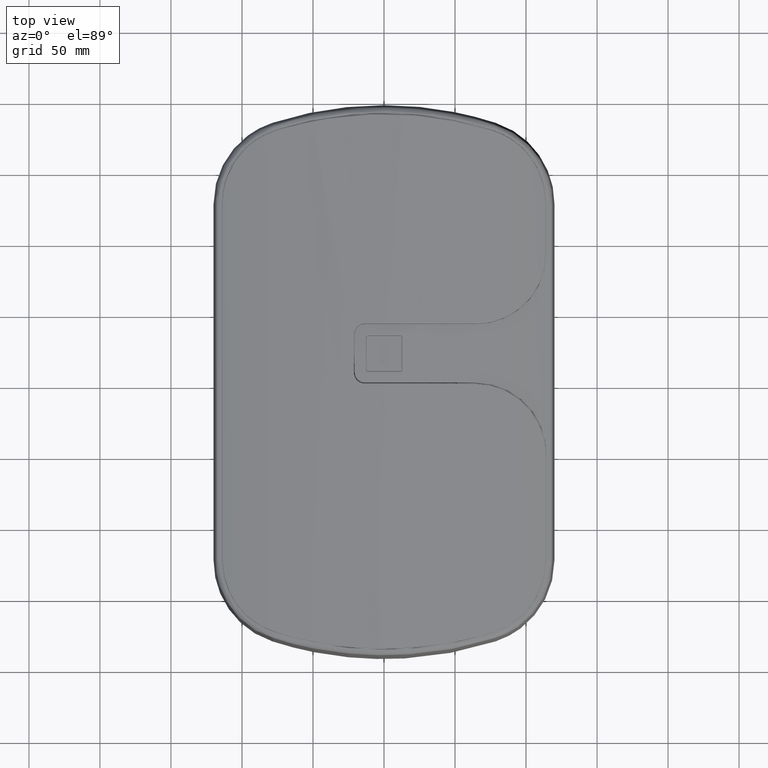
[diagram: clean part render]
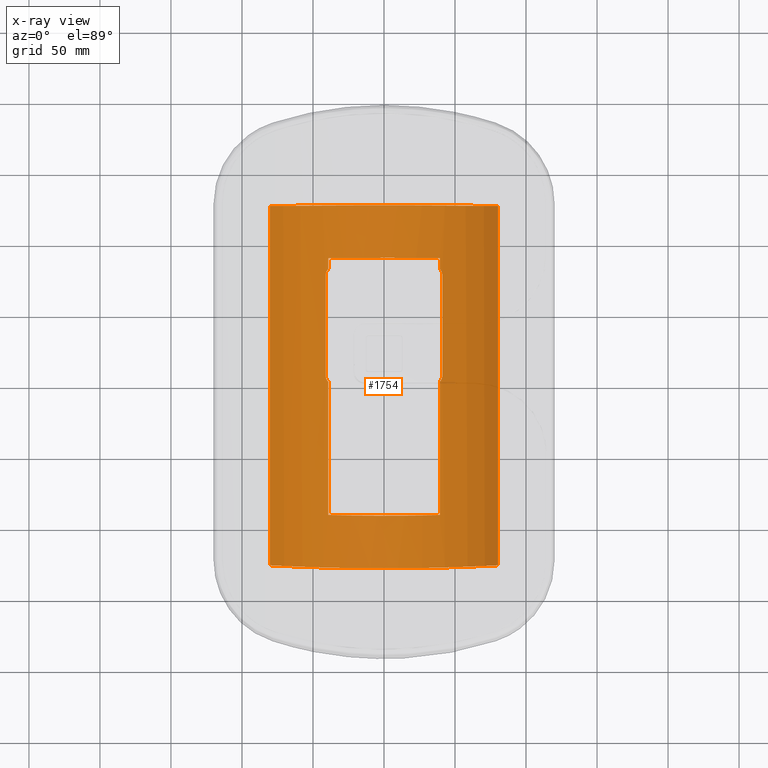
[diagram: x-ray — body ghosted, one internal face saturated and labeled with its STEP entity id]
A machine part, top view, then the same camera in x-ray: the body is ghosted and one INTERNAL B-rep face — a face not visible from any outside direction — is saturated and labeled: STEP entity #1754.
In plain terms, the highlighted cylindrical surface (partial cylindrical patch) has radius 90.1522 mm, axis along (0, 1, 0).
Its self-contained STEP definition (entity closure, byte-faithful):
#132 = CARTESIAN_POINT ( 'NONE',  ( 40.90557813736990767, 57.07402972177268907, 94.80803827280256257 ) ) ;
#234 = VERTEX_POINT ( 'NONE', #63176 ) ;
#364 = CARTESIAN_POINT ( 'NONE',  ( -30.78841849190333235, -39.62429012305283038, 90.41985972601159460 ) ) ;
#439 = CARTESIAN_POINT ( 'NONE',  ( 41.03697861963429716, 57.80484683071844643, 94.88149629760330583 ) ) ;
#676 = CARTESIAN_POINT ( 'NONE',  ( 41.03697861965481053, 58.50000000000055422, 94.88149629764072301 ) ) ;
#742 = CARTESIAN_POINT ( 'NONE',  ( -7.302154757409890173, 141.7136526531677703, 85.28892349771538761 ) ) ;
#1314 = CARTESIAN_POINT ( 'NONE',  ( 19.66662352687982818, -39.79456564662091722, 87.17080918623400976 ) ) ;
#1359 = CYLINDRICAL_SURFACE ( 'NONE', #49672, 90.15221630656441221 ) ;
#1424 = CARTESIAN_POINT ( 'NONE',  ( 39.26499577889830306, 54.41912190320896769, 93.99999999999677414 ) ) ;
#1754 = ADVANCED_FACE ( 'NONE', ( #51331, #21022 ), #1359, .F. ) ;
#1968 = CARTESIAN_POINT ( 'NONE',  ( 20.18774678234797548, -39.78835481277956632, 87.28931895570568145 ) ) ;
#2169 = CARTESIAN_POINT ( 'NONE',  ( -76.52978605664300460, 177.5188396419665651, 126.7775404535725414 ) ) ;
#2193 = EDGE_CURVE ( 'NONE', #46781, #11759, #62218, .T. ) ;
#2223 = EDGE_CURVE ( 'NONE', #37433, #234, #63266, .T. ) ;
#2601 = CARTESIAN_POINT ( 'NONE',  ( 18.93627237570326471, -39.80302747727972701, 87.00934783880489931 ) ) ;
#2793 = CARTESIAN_POINT ( 'NONE',  ( -40.83296532811448287, 56.95666379137531266, 94.77500764300280878 ) ) ;
#2958 = DIRECTION ( 'NONE',  ( 2.465190328815662439E-32, 1.000000000000000000, 4.287526199837192785E-16 ) ) ;
#3111 = CARTESIAN_POINT ( 'NONE',  ( -39.26499577891425474, 54.38909468053756768, 93.99999999999839417 ) ) ;
#3416 = CARTESIAN_POINT ( 'NONE',  ( 39.26499577891434711, -39.43666292177143617, 93.99999999999839417 ) ) ;
#3700 = VECTOR ( 'NONE', #8655, 1000.000000000000000 ) ;
#4060 = CARTESIAN_POINT ( 'NONE',  ( -40.59662378784479841, 56.29230851202581931, 94.65505941444013160 ) ) ;
#4064 = CARTESIAN_POINT ( 'NONE',  ( 53.95139515573681166, 178.0863308044475275, 102.8086101609835481 ) ) ;
#4329 = CARTESIAN_POINT ( 'NONE',  ( 30.49624810130703167, 141.4502654430991129, 90.31465085483495159 ) ) ;
#4880 = EDGE_CURVE ( 'NONE', #16903, #52347, #14126, .T. ) ;
#5889 = CARTESIAN_POINT ( 'NONE',  ( -1.560708319839698789E-14, -144.0897692216264829, 175.1522163065623943 ) ) ;
#5911 = CARTESIAN_POINT ( 'NONE',  ( -29.70804349153114998, 141.4648984631275539, 90.03543619951747701 ) ) ;
#5940 = LINE ( 'NONE', #45917, #30863 ) ;
#5951 = LINE ( 'NONE', #40729, #25349 ) ;
#6163 = CARTESIAN_POINT ( 'NONE',  ( -18.72948519085342411, -39.80611490787921269, 86.95043615352248878 ) ) ;
#6189 = EDGE_CURVE ( 'NONE', #11759, #23847, #26453, .T. ) ;
#6773 = CARTESIAN_POINT ( 'NONE',  ( -20.43001166666658719, -76.83627162475123384, 87.24732403663740854 ) ) ;
#6863 = CARTESIAN_POINT ( 'NONE',  ( 11.78333394771946629, 141.6883584543913628, 85.77156556197436998 ) ) ;
#7086 = CARTESIAN_POINT ( 'NONE',  ( -80.31623573083551548, -75.62785733024065848, 134.2043911748850462 ) ) ;
#7307 = CARTESIAN_POINT ( 'NONE',  ( -20.55913101279658406, 178.6553967417365243, 87.27942898633652646 ) ) ;
#7405 = CARTESIAN_POINT ( 'NONE',  ( -4.092363584587587866, -76.93244110880645792, 84.99854959376843055 ) ) ;
#7619 = CARTESIAN_POINT ( 'NONE',  ( -40.27744008708557999, 55.56833773635279528, 94.49437593108275735 ) ) ;
#7947 = CARTESIAN_POINT ( 'NONE',  ( 32.41810375016801515, 178.5182008680135084, 90.62161781680356398 ) ) ;
#8270 = CARTESIAN_POINT ( 'NONE',  ( 71.70443713174810796, 177.6429719785025441, 119.8920985516345468 ) ) ;
#8586 = CARTESIAN_POINT ( 'NONE',  ( 39.94627156527391776, 178.3872395347475504, 93.90960074008955871 ) ) ;
#8601 = ORIENTED_EDGE ( 'NONE', *, *, #25851, .F. ) ;
#8655 = DIRECTION ( 'NONE',  ( 3.345615446249826462E-32, 1.000000000000000000, 2.701493307515542275E-16 ) ) ;
#8885 = CARTESIAN_POINT ( 'NONE',  ( -40.88232499727023850, 57.14558125166216485, 94.80040790457469768 ) ) ;
#9166 = CARTESIAN_POINT ( 'NONE',  ( 31.46871119831700625, 141.4317052587238663, 90.66880026984709673 ) ) ;
#9597 = VERTEX_POINT ( 'NONE', #19346 ) ;
#10097 = EDGE_CURVE ( 'NONE', #234, #16903, #42277, .T. ) ;
#10672 = CARTESIAN_POINT ( 'NONE',  ( -30.49624810129206409, -39.62980388635244111, 90.31465085482757615 ) ) ;
#10995 = ORIENTED_EDGE ( 'NONE', *, *, #31451, .F. ) ;
#11299 = CARTESIAN_POINT ( 'NONE',  ( 7.302154756477118980, -39.89319109642043060, 85.28892349772094406 ) ) ;
#11366 = CARTESIAN_POINT ( 'NONE',  ( 13.26491814773293676, 141.6777502991255915, 85.97398122260435116 ) ) ;
#11499 = CARTESIAN_POINT ( 'NONE',  ( 4.092363584591142356, 178.7529026655325026, 84.99854959376854424 ) ) ;
#11563 = VERTEX_POINT ( 'NONE', #56293 ) ;
#11621 = CARTESIAN_POINT ( 'NONE',  ( 30.00860307232177604, -39.63890755541364541, 90.14094250111047302 ) ) ;
#11683 = CARTESIAN_POINT ( 'NONE',  ( -9.442657841708070876, 141.7028207289071986, 85.49560892512184296 ) ) ;
#11692 = EDGE_CURVE ( 'NONE', #52347, #46697, #5951, .T. ) ;
#11759 = VERTEX_POINT ( 'NONE', #53624 ) ;
#11904 = CARTESIAN_POINT ( 'NONE',  ( -63.30747214974628889, -76.03649449990155063, 110.8363374086144262 ) ) ;
#12124 = CARTESIAN_POINT ( 'NONE',  ( -63.41549348279308873, 177.8542120993895139, 110.9420437781815423 ) ) ;
#12453 = CARTESIAN_POINT ( 'NONE',  ( -60.36831774476978296, 177.9315257084275288, 108.0695028929325474 ) ) ;
#12545 = CARTESIAN_POINT ( 'NONE',  ( 39.96653512024431620, -76.56004581512064533, 94.23631551905641857 ) ) ;
#12731 = EDGE_CURVE ( 'NONE', #39972, #55456, #33773, .T. ) ;
#12757 = CARTESIAN_POINT ( 'NONE',  ( 8.193435622893604275, 178.7406797528215350, 85.27878004949354818 ) ) ;
#12793 = CARTESIAN_POINT ( 'NONE',  ( -39.87228289553593186, 133.0136201021454951, 94.29383209919737396 ) ) ;
#12855 = CARTESIAN_POINT ( 'NONE',  ( 63.41549348280680931, -76.03375054263264587, 110.9420437781964353 ) ) ;
#12996 = VECTOR ( 'NONE', #2958, 1000.000000000000000 ) ;
#14103 = CARTESIAN_POINT ( 'NONE',  ( 39.26499577891430448, 138.4102307783735455, 93.99999999999850786 ) ) ;
#14126 = B_SPLINE_CURVE_WITH_KNOTS ( 'NONE', 3,
 ( #19463, #28489, #48164, #18824, #9166, #48480, #4329, #23973, #43650, #63333, #19142, #58481, #33957, #53661, #58804, #30706, #16185, #25862, #20406, #11366, #6863, #40684, #35227, #16828, #55563, #21700, #40055, #15857, #742, #46205, #11683, #59748, #35869, #26505, #16511, #61029, #15548, #31022, #30390, #50067, #30080, #54923, #50391, #40367, #36196, #35540, #5911, #41012, #54611, #55239, #55882, #20732 ),
 .UNSPECIFIED., .F., .F.,
 ( 4, 1, 1, 1, 1, 2, 2, 1, 1, 1, 1, 2, 2, 1, 1, 1, 2, 2, 2, 1, 1, 1, 2, 2, 1, 1, 1, 1, 2, 2, 1, 1, 1, 1, 2, 2, 4 ),
 ( 0.0000000000000000000, 0.06249999999999902855, 0.09374999999999843181, 0.1093749999999981404, 0.1171874999999979877, 0.1210937499999978351, 0.1249999999999976963, 0.1874999999999959477, 0.2187499999999950873, 0.2343749999999946987, 0.2421874999999945599, 0.2460937499999945599, 0.2499999999999945599, 0.3124999999999950595, 0.3437499999999953371, 0.3593749999999954481, 0.3671874999999955591, 0.3749999999999956701, 0.4999999999999981126, 0.5624999999999993339, 0.5937500000000000000, 0.6093750000000003331, 0.6171875000000004441, 0.6250000000000004441, 0.6875000000000016653, 0.7187500000000022204, 0.7343750000000025535, 0.7421875000000026645, 0.7460937500000028866, 0.7500000000000029976, 0.8125000000000043299, 0.8437500000000049960, 0.8593750000000052180, 0.8671875000000053291, 0.8710937500000052180, 0.8750000000000051070, 1.000000000000000000 ),
 .UNSPECIFIED. ) ;
#14434 = CARTESIAN_POINT ( 'NONE',  ( 41.03697861965488158, 129.5000000000005684, 94.88149629764075144 ) ) ;
#15390 = VECTOR ( 'NONE', #52830, 1000.000000000000000 ) ;
#15548 = CARTESIAN_POINT ( 'NONE',  ( -18.93627237676039954, 141.6234890340170409, 87.00934783899194258 ) ) ;
#15857 = CARTESIAN_POINT ( 'NONE',  ( -4.301066264570866160, 141.7249277526902915, 85.07378178255819989 ) ) ;
#16094 = ORIENTED_EDGE ( 'NONE', *, *, #48009, .F. ) ;
#16119 = CARTESIAN_POINT ( 'NONE',  ( 8.800792840319365595, -39.88586241864091164, 85.42876300017192648 ) ) ;
#16185 = CARTESIAN_POINT ( 'NONE',  ( 20.50021952914041634, 141.6050230085652686, 87.36170059471525917 ) ) ;
#16442 = CARTESIAN_POINT ( 'NONE',  ( -6.876365132344457898, -39.89802510718777029, 85.19668507751919151 ) ) ;
#16511 = CARTESIAN_POINT ( 'NONE',  ( -14.53492963112616998, 141.6684952284267354, 86.15057849166541359 ) ) ;
#16711 = EDGE_CURVE ( 'NONE', #63725, #37433, #59150, .T. ) ;
#16760 = CARTESIAN_POINT ( 'NONE',  ( 9.870477072433926580, -39.87994314460053857, 85.54170947722846563 ) ) ;
#16828 = CARTESIAN_POINT ( 'NONE',  ( 10.51202233754770354, 141.6965792048667652, 85.61470429847665287 ) ) ;
#16903 = VERTEX_POINT ( 'NONE', #46246 ) ;
#17061 = CARTESIAN_POINT ( 'NONE',  ( -76.54733921975808641, -75.69805116676207035, 126.8119697299024438 ) ) ;
#17379 = CARTESIAN_POINT ( 'NONE',  ( 43.64063563574621440, -76.48935750306704051, 96.15976942702342001 ) ) ;
#17606 = CARTESIAN_POINT ( 'NONE',  ( -40.56618099421194756, 56.22193523280677141, 94.63972347560275011 ) ) ;
#17916 = CARTESIAN_POINT ( 'NONE',  ( -41.03697861896238663, 58.46218604700645471, 94.88149633848685482 ) ) ;
#18112 = DIRECTION ( 'NONE',  ( -2.465190328815662439E-32, -1.000000000000000000, -4.287526199837192785E-16 ) ) ;
#18555 = CARTESIAN_POINT ( 'NONE',  ( -40.99972241665531669, 57.71280369465565485, 94.86130439899493183 ) ) ;
#18824 = CARTESIAN_POINT ( 'NONE',  ( 32.82354379084132034, 141.4048885230713211, 91.18049406835324078 ) ) ;
#19142 = CARTESIAN_POINT ( 'NONE',  ( 26.10654283455853886, 141.5278746023320195, 88.83377987929092967 ) ) ;
#19201 = EDGE_CURVE ( 'NONE', #23847, #60519, #54080, .T. ) ;
#19346 = CARTESIAN_POINT ( 'NONE',  ( -80.31623573083551548, -75.62785733024065848, 134.2043911748850462 ) ) ;
#19463 = CARTESIAN_POINT ( 'NONE',  ( 39.26499577891432580, 141.2571244785185627, 93.99999999999830891 ) ) ;
#19995 = EDGE_CURVE ( 'NONE', #9597, #11563, #5940, .T. ) ;
#20029 = CARTESIAN_POINT ( 'NONE',  ( -30.20570448796276253, -39.63524788764015483, 90.21077312212862864 ) ) ;
#20406 = CARTESIAN_POINT ( 'NONE',  ( 16.21731775166131229, 141.6532377964117018, 86.44170763744691044 ) ) ;
#20732 = CARTESIAN_POINT ( 'NONE',  ( -39.26499577891437553, 141.2571244785185627, 93.99999999999830891 ) ) ;
#20983 = CARTESIAN_POINT ( 'NONE',  ( -10.72288012006493041, -39.87480706489155580, 85.63971171619463973 ) ) ;
#21022 = FACE_BOUND ( 'NONE', #36654, .T. ) ;
#21277 = CARTESIAN_POINT ( 'NONE',  ( 80.31623573083554390, -75.62785733024057322, 134.2043911748849041 ) ) ;
#21305 = CARTESIAN_POINT ( 'NONE',  ( 9.442657841380468042, -39.88235917216008630, 85.49560892512377563 ) ) ;
#21608 = CARTESIAN_POINT ( 'NONE',  ( -53.95139515575968403, -76.26586924769026155, 102.8086101610024343 ) ) ;
#21634 = CARTESIAN_POINT ( 'NONE',  ( -20.60160403325334855, -39.78331745322898882, 87.38543750183544034 ) ) ;
#21700 = CARTESIAN_POINT ( 'NONE',  ( 3.444338566794306278, 141.7287955351898177, 84.99998009600697912 ) ) ;
#21919 = CARTESIAN_POINT ( 'NONE',  ( 28.46718220651051467, -76.74323636708913909, 89.51388285332242845 ) ) ;
#22230 = CARTESIAN_POINT ( 'NONE',  ( 76.52978605666091028, -75.69837808646505550, 126.7775404536074291 ) ) ;
#22448 = CARTESIAN_POINT ( 'NONE',  ( -39.84872736645538538, 54.93249555457350652, 94.28243490275255567 ) ) ;
#22453 = CARTESIAN_POINT ( 'NONE',  ( -80.31623573083551548, 177.4483188869874652, 134.2043911748850178 ) ) ;
#22552 = CARTESIAN_POINT ( 'NONE',  ( 4.156019133134533305, -76.93231492135953431, 85.00146164286043415 ) ) ;
#22843 = ORIENTED_EDGE ( 'NONE', *, *, #2193, .F. ) ;
#23656 = VERTEX_POINT ( 'NONE', #38278 ) ;
#23705 = CARTESIAN_POINT ( 'NONE',  ( 60.31667835411771250, 177.9328076530025555, 108.0236180661475487 ) ) ;
#23847 = VERTEX_POINT ( 'NONE', #50844 ) ;
#23973 = CARTESIAN_POINT ( 'NONE',  ( 30.30133086898169736, 141.4539240497394701, 90.24484048144367421 ) ) ;
#23990 = EDGE_CURVE ( 'NONE', #11563, #60111, #51400, .T. ) ;
#24748 = CARTESIAN_POINT ( 'NONE',  ( 40.90557813738205795, 130.9259702781836552, 94.80803827280259100 ) ) ;
#25349 = VECTOR ( 'NONE', #39777, 1000.000000000000000 ) ;
#25478 = CARTESIAN_POINT ( 'NONE',  ( -39.26499577891432580, -39.43666292177143617, 93.99999999999836575 ) ) ;
#25795 = CARTESIAN_POINT ( 'NONE',  ( -11.14721549124943678, -39.87209008645127284, 85.69155475319136883 ) ) ;
#25851 = EDGE_CURVE ( 'NONE', #60111, #23656, #48406, .T. ) ;
#25862 = CARTESIAN_POINT ( 'NONE',  ( 18.72948519028812342, 141.6265764646298351, 86.95043615345340982 ) ) ;
#26407 = CARTESIAN_POINT ( 'NONE',  ( -32.41810375011388601, -76.69773931120353438, 90.62161781678842942 ) ) ;
#26453 = B_SPLINE_CURVE_WITH_KNOTS ( 'NONE', 3,
 ( #17916, #37247, #18555, #8885, #2793, #43060, #56945, #28542, #4060, #57574, #33074, #17606, #7619, #22448, #3111 ),
 .UNSPECIFIED., .F., .F.,
 ( 4, 2, 2, 1, 1, 1, 2, 2, 4 ),
 ( 0.0000000000000000000, 0.2499999999999640288, 0.3749999999999455991, 0.4374999999999371059, 0.4687499999999336087, 0.4843749999999345524, 0.4921874999999342193, 0.4999999999999339417, 1.000000000000000000 ),
 .UNSPECIFIED. ) ;
#26505 = CARTESIAN_POINT ( 'NONE',  ( -11.99789281474117608, 141.6876247229284331, 85.78556599230954305 ) ) ;
#26764 = CARTESIAN_POINT ( 'NONE',  ( -21.11492564111229697, -39.77694003466104533, 87.50712589724511759 ) ) ;
#27080 = CARTESIAN_POINT ( 'NONE',  ( 29.70804349126532884, -39.64443690638470486, 90.03543619943758358 ) ) ;
#27270 = CARTESIAN_POINT ( 'NONE',  ( -39.96653512024869315, 178.3805073719095731, 94.23631551905856440 ) ) ;
#27689 = CARTESIAN_POINT ( 'NONE',  ( 32.34962636601121488, -76.68747681218124512, 90.90134922645043503 ) ) ;
#28489 = CARTESIAN_POINT ( 'NONE',  ( 37.77359598804778784, 141.2949421691893974, 93.27839547509154272 ) ) ;
#28542 = CARTESIAN_POINT ( 'NONE',  ( -40.63034417318725389, 56.37301430195131502, 94.67206815911985984 ) ) ;
#29250 = CARTESIAN_POINT ( 'NONE',  ( -39.26499577891437553, 141.2571244785185627, 93.99999999999830891 ) ) ;
#30080 = CARTESIAN_POINT ( 'NONE',  ( -20.29323978294218733, 141.6075424399042220, 87.31362698096019415 ) ) ;
#30099 = CARTESIAN_POINT ( 'NONE',  ( 41.03697861965481053, 58.50000000000055422, 94.88149629764072301 ) ) ;
#30328 = CARTESIAN_POINT ( 'NONE',  ( -26.10654283532069897, -39.70741304557012086, 88.83377987957528887 ) ) ;
#30390 = CARTESIAN_POINT ( 'NONE',  ( -19.97933673730859994, 141.6113124679366138, 87.24169056075729145 ) ) ;
#30646 = CARTESIAN_POINT ( 'NONE',  ( -3.444338565372994765, -39.90833397844318142, 84.99998009599829629 ) ) ;
#30706 = CARTESIAN_POINT ( 'NONE',  ( 20.60160403319973099, 141.6037790099770461, 87.38543750181547409 ) ) ;
#30863 = VECTOR ( 'NONE', #54956, 1000.000000000000000 ) ;
#30959 = CARTESIAN_POINT ( 'NONE',  ( 10.08569356596223265, -39.87868671668110920, 85.56568355009756033 ) ) ;
#31022 = CARTESIAN_POINT ( 'NONE',  ( -19.66662352744614850, 141.6150272033627004, 87.17080918633418207 ) ) ;
#31239 = CARTESIAN_POINT ( 'NONE',  ( 60.36831774477291646, -76.11106415169125228, 108.0695028929354322 ) ) ;
#31267 = CARTESIAN_POINT ( 'NONE',  ( 24.48875664699919597, -39.73219327771661824, 88.36094488283409021 ) ) ;
#31451 = EDGE_CURVE ( 'NONE', #55456, #63725, #57075, .T. ) ;
#31591 = CARTESIAN_POINT ( 'NONE',  ( -11.78333394815229695, -39.86789689764155042, 85.77156556202722015 ) ) ;
#31827 = CARTESIAN_POINT ( 'NONE',  ( -40.32389643794618905, 132.3355820576323367, 94.51420617359963217 ) ) ;
#32118 = CARTESIAN_POINT ( 'NONE',  ( -53.99265116412249199, 178.0853716934495026, 102.8388852635385433 ) ) ;
#32213 = CARTESIAN_POINT ( 'NONE',  ( 16.53351481183081262, -76.87088701853373607, 86.43248024511341043 ) ) ;
#32430 = CARTESIAN_POINT ( 'NONE',  ( 16.34962629127891276, 178.6927530611175428, 86.39943239475752534 ) ) ;
#33074 = CARTESIAN_POINT ( 'NONE',  ( -40.57183079257493574, 56.23482886775374112, 94.64256831856741314 ) ) ;
#33207 = CARTESIAN_POINT ( 'NONE',  ( 80.31623573083551548, 177.4483188869874652, 134.2043911748849609 ) ) ;
#33573 = ORIENTED_EDGE ( 'NONE', *, *, #56343, .F. ) ;
#33773 = LINE ( 'NONE', #14103, #3700 ) ;
#33957 = CARTESIAN_POINT ( 'NONE',  ( 21.83234790000443581, 141.5882515340259431, 87.68171939285451799 ) ) ;
#34099 = CARTESIAN_POINT ( 'NONE',  ( 40.32389643799339041, 132.3355820575520454, 94.51420617359961796 ) ) ;
#35163 = CARTESIAN_POINT ( 'NONE',  ( -37.77359598798538798, -39.47448061244394069, 93.27839547506125939 ) ) ;
#35203 = DIRECTION ( 'NONE',  ( 2.465190328815662439E-32, 1.000000000000000000, 4.287526199837192785E-16 ) ) ;
#35227 = CARTESIAN_POINT ( 'NONE',  ( 10.72288011992799639, 141.6952686216394568, 85.63971171617792777 ) ) ;
#35480 = CARTESIAN_POINT ( 'NONE',  ( -21.83234790033788997, -39.76778997727236487, 87.68171939297894824 ) ) ;
#35540 = CARTESIAN_POINT ( 'NONE',  ( -29.40914574361928757, 141.4703558615202894, 89.93130283482697962 ) ) ;
#35807 = CARTESIAN_POINT ( 'NONE',  ( -20.50021952910510947, -39.78456145181843340, 87.36170059471092486 ) ) ;
#35869 = CARTESIAN_POINT ( 'NONE',  ( -10.08569356578967557, 141.6991482734297279, 85.56568355006709226 ) ) ;
#36101 = ORIENTED_EDGE ( 'NONE', *, *, #4880, .F. ) ;
#36134 = CARTESIAN_POINT ( 'NONE',  ( 19.97933673697690793, -39.79085091119269890, 87.24169056069862904 ) ) ;
#36171 = CARTESIAN_POINT ( 'NONE',  ( 39.26499577891446080, -144.0897692216264261, 93.99999999999805311 ) ) ;
#36196 = CARTESIAN_POINT ( 'NONE',  ( -28.71062073528807801, 141.4828944044126899, 89.69205318403099625 ) ) ;
#36420 = CARTESIAN_POINT ( 'NONE',  ( 50.64663383622181669, -76.34191696916975900, 100.4579713892434256 ) ) ;
#36576 = ORIENTED_EDGE ( 'NONE', *, *, #23990, .F. ) ;
#36654 = EDGE_LOOP ( 'NONE', ( #54478, #33573, #52823, #58237, #22843, #57645, #48879, #36101, #50862, #42815, #45319, #10995 ) ) ;
#36667 = CARTESIAN_POINT ( 'NONE',  ( -41.03697861963458138, 130.1951531693134712, 94.88149629760333426 ) ) ;
#36988 = VECTOR ( 'NONE', #63437, 1000.000000000000000 ) ;
#37064 = CARTESIAN_POINT ( 'NONE',  ( 14.53492962870989480, -39.84803367170205490, 86.15057849123796530 ) ) ;
#37247 = CARTESIAN_POINT ( 'NONE',  ( -41.03697861555249915, 58.09146776006546276, 94.88149653383590021 ) ) ;
#37253 = CARTESIAN_POINT ( 'NONE',  ( -16.53351481181488580, 178.6913485752915562, 86.43248024511154881 ) ) ;
#37433 = VERTEX_POINT ( 'NONE', #38361 ) ;
#37891 = CARTESIAN_POINT ( 'NONE',  ( 76.54733921975140731, 177.5185127231785316, 126.8119697298895403 ) ) ;
#38278 = CARTESIAN_POINT ( 'NONE',  ( 80.31623573083554390, -75.62785733024057322, 134.2043911748849041 ) ) ;
#38289 = CARTESIAN_POINT ( 'NONE',  ( 39.26499577889841675, 133.5808780967922473, 93.99999999999673150 ) ) ;
#38361 = CARTESIAN_POINT ( 'NONE',  ( 41.03697861965488158, 129.5000000000005684, 94.88149629764075144 ) ) ;
#39594 = VECTOR ( 'NONE', #18112, 1000.000000000000000 ) ;
#39683 = CARTESIAN_POINT ( 'NONE',  ( -28.51426723202990487, -39.66665298474570278, 89.61152817156599326 ) ) ;
#39777 = DIRECTION ( 'NONE',  ( -2.465190328815662439E-32, -1.000000000000000000, -4.287526199837192785E-16 ) ) ;
#39972 = VERTEX_POINT ( 'NONE', #3416 ) ;
#40055 = CARTESIAN_POINT ( 'NONE',  ( -1.722169283397183781, 141.7287939705038013, 85.00000995199395959 ) ) ;
#40310 = CARTESIAN_POINT ( 'NONE',  ( -35.51019769477319699, -39.52789792101360433, 92.25913250875287019 ) ) ;
#40367 = CARTESIAN_POINT ( 'NONE',  ( -27.30918299914496572, 141.5071899434355771, 89.22846668303344586 ) ) ;
#40620 = CARTESIAN_POINT ( 'NONE',  ( 4.301066263327165018, -39.90446619594285238, 85.07378178256560375 ) ) ;
#40684 = CARTESIAN_POINT ( 'NONE',  ( 11.14721549098885234, 141.6925516431999768, 85.69155475315960757 ) ) ;
#40705 = CARTESIAN_POINT ( 'NONE',  ( 40.32389643796959433, 55.66441794240915186, 94.51420617359960374 ) ) ;
#40729 = CARTESIAN_POINT ( 'NONE',  ( -39.26499577891446080, -144.0897692216264261, 93.99999999999802469 ) ) ;
#40920 = CARTESIAN_POINT ( 'NONE',  ( 8.335771484027214129, -76.91969311080804061, 85.29085869044241974 ) ) ;
#40948 = CARTESIAN_POINT ( 'NONE',  ( 29.40914574316539642, -39.64989430478036780, 89.93130283469054120 ) ) ;
#41012 = CARTESIAN_POINT ( 'NONE',  ( -29.90720418729427976, 141.4612415892761135, 90.10521350932533835 ) ) ;
#41244 = CARTESIAN_POINT ( 'NONE',  ( -60.31667835409658807, -76.11234609626633585, 108.0236180661304246 ) ) ;
#41273 = CARTESIAN_POINT ( 'NONE',  ( 33.22957158578294212, -39.57910135444541311, 91.28211279655938881 ) ) ;
#41563 = CARTESIAN_POINT ( 'NONE',  ( -8.193435622896295456, -76.92021819606384270, 85.27878004949343449 ) ) ;
#41588 = CARTESIAN_POINT ( 'NONE',  ( 1.722169282686480507, -39.90833241375654694, 85.00000995199810916 ) ) ;
#41880 = CARTESIAN_POINT ( 'NONE',  ( 71.82140099238441167, -75.81951161736965616, 120.0404723340064095 ) ) ;
#41907 = CARTESIAN_POINT ( 'NONE',  ( 29.90720418715815043, -39.64078003253126781, 90.10521350928435425 ) ) ;
#42108 = CARTESIAN_POINT ( 'NONE',  ( -50.64663383622268356, 178.1623785259375268, 100.4579713892435393 ) ) ;
#42277 = LINE ( 'NONE', #36171, #12996 ) ;
#42815 = ORIENTED_EDGE ( 'NONE', *, *, #2223, .F. ) ;
#43060 = CARTESIAN_POINT ( 'NONE',  ( -40.74314678165617920, 56.67534101015916548, 94.72921571592929979 ) ) ;
#43650 = CARTESIAN_POINT ( 'NONE',  ( 30.20570448798993723, 141.4557094443866845, 90.21077312213887467 ) ) ;
#43752 = CARTESIAN_POINT ( 'NONE',  ( -39.26499577891428316, 138.4102307783735455, 93.99999999999850786 ) ) ;
#43919 = EDGE_CURVE ( 'NONE', #46697, #46781, #57938, .T. ) ;
#44278 = ORIENTED_EDGE ( 'NONE', *, *, #19995, .F. ) ;
#44544 = CARTESIAN_POINT ( 'NONE',  ( -32.82354379075935213, -39.58442696632635460, 91.18049406831340775 ) ) ;
#44626 = CARTESIAN_POINT ( 'NONE',  ( 39.87228289555843475, 54.98637989787671643, 94.29383209919737396 ) ) ;
#45319 = ORIENTED_EDGE ( 'NONE', *, *, #16711, .F. ) ;
#45490 = CARTESIAN_POINT ( 'NONE',  ( 17.47282209621673488, -39.81912759723581985, 86.70213924923358206 ) ) ;
#45917 = CARTESIAN_POINT ( 'NONE',  ( -80.31623573083574286, -144.0897692216264545, 134.2043911748853020 ) ) ;
#46117 = CARTESIAN_POINT ( 'NONE',  ( -50.55024863336108609, -76.34410450967094164, 100.3908911386884313 ) ) ;
#46144 = CARTESIAN_POINT ( 'NONE',  ( -20.80699459194870471, -39.78077766251073655, 87.43389959568871461 ) ) ;
#46205 = CARTESIAN_POINT ( 'NONE',  ( -8.800792840863497446, 141.7063239753881021, 85.42876300016868640 ) ) ;
#46246 = CARTESIAN_POINT ( 'NONE',  ( 39.26499577891432580, 141.2571244785185627, 93.99999999999830891 ) ) ;
#46457 = CARTESIAN_POINT ( 'NONE',  ( 39.26499577891434711, -39.43666292177143617, 93.99999999999839417 ) ) ;
#46697 = VERTEX_POINT ( 'NONE', #47274 ) ;
#46760 = CARTESIAN_POINT ( 'NONE',  ( 36.28250078582423299, -39.51229057960474478, 92.55693832350733885 ) ) ;
#46781 = VERTEX_POINT ( 'NONE', #55618 ) ;
#46952 = CARTESIAN_POINT ( 'NONE',  ( -28.46718220651648679, 178.5636979237725654, 89.51388285332454586 ) ) ;
#47274 = CARTESIAN_POINT ( 'NONE',  ( -39.26499577889840253, 133.5808780967922473, 93.99999999999673150 ) ) ;
#47580 = CARTESIAN_POINT ( 'NONE',  ( 50.55024863335621177, 178.1645660663755280, 100.3908911386855465 ) ) ;
#48009 = EDGE_CURVE ( 'NONE', #23656, #9597, #63723, .T. ) ;
#48164 = CARTESIAN_POINT ( 'NONE',  ( 35.51019769488247135, 141.3483594777578674, 92.25913250880579142 ) ) ;
#48406 = LINE ( 'NONE', #62315, #39594 ) ;
#48480 = CARTESIAN_POINT ( 'NONE',  ( 30.78841849192891189, 141.4447516797991682, 90.41985972602410015 ) ) ;
#48879 = ORIENTED_EDGE ( 'NONE', *, *, #11692, .F. ) ;
#49266 = CARTESIAN_POINT ( 'NONE',  ( 39.87228289558124317, 133.0136201021037152, 94.29383209919743081 ) ) ;
#49672 = AXIS2_PLACEMENT_3D ( 'NONE', #5889, #35203, #60033 ) ;
#50006 = CARTESIAN_POINT ( 'NONE',  ( -31.46871119826921159, -39.61124370197809696, 90.66880026982386198 ) ) ;
#50067 = CARTESIAN_POINT ( 'NONE',  ( -20.18774678251786980, 141.6088163695250444, 87.28931895573575162 ) ) ;
#50327 = CARTESIAN_POINT ( 'NONE',  ( -13.26491814847489614, -39.85728874237382513, 85.97398122269503062 ) ) ;
#50391 = CARTESIAN_POINT ( 'NONE',  ( -24.48875664893594362, 141.5526548344331559, 88.36094488341613840 ) ) ;
#50459 = EDGE_LOOP ( 'NONE', ( #36576, #44278, #16094, #8601 ) ) ;
#50654 = CARTESIAN_POINT ( 'NONE',  ( 28.71062073444078422, -39.66243284767903532, 89.69205318377630931 ) ) ;
#50844 = CARTESIAN_POINT ( 'NONE',  ( -39.26499577891425474, 54.38909468053756768, 93.99999999999839417 ) ) ;
#50862 = ORIENTED_EDGE ( 'NONE', *, *, #10097, .F. ) ;
#50940 = CARTESIAN_POINT ( 'NONE',  ( 20.55913101280031441, -76.83493518492724661, 87.27942898633745017 ) ) ;
#50967 = CARTESIAN_POINT ( 'NONE',  ( 22.04116112835379582, -39.76580400647601721, 87.71961397320210096 ) ) ;
#51263 = CARTESIAN_POINT ( 'NONE',  ( -71.70443713173918354, -75.82251042169245636, 119.8920985516244144 ) ) ;
#51331 = FACE_OUTER_BOUND ( 'NONE', #50459, .T. ) ;
#51400 = B_SPLINE_CURVE_WITH_KNOTS ( 'NONE', 3,
 ( #22453, #2169, #56328, #12124, #12453, #32118, #42108, #51481, #27270, #61804, #46952, #7307, #37253, #55698, #56950, #11499, #12757, #32430, #52111, #7947, #8586, #47580, #4064, #23705, #53716, #8270, #37891, #53389 ),
 .UNSPECIFIED., .F., .F.,
 ( 4, 2, 2, 2, 2, 2, 2, 2, 2, 2, 2, 2, 2, 4 ),
 ( 0.0000000000000000000, 0.1250000000000000000, 0.1875000000000000000, 0.2500000000000000000, 0.3125000000000000000, 0.3750000000000000000, 0.4375000000000000000, 0.5000000000000000000, 0.5625000000000000000, 0.6250000000000000000, 0.7500000000000000000, 0.8125000000000000000, 0.8750000000000000000, 1.000000000000000000 ),
 .UNSPECIFIED. ) ;
#51481 = CARTESIAN_POINT ( 'NONE',  ( -43.64063563574708837, 178.3098190597925452, 96.15976942702353369 ) ) ;
#51837 = CARTESIAN_POINT ( 'NONE',  ( -41.03697861966544025, 129.5000000000005684, 94.88149629761689141 ) ) ;
#52111 = CARTESIAN_POINT ( 'NONE',  ( 20.43001166663781376, 178.6567331814665636, 87.24732403662954994 ) ) ;
#52206 = CARTESIAN_POINT ( 'NONE',  ( 53.99265116411751109, -76.26491013669235031, 102.8388852635344364 ) ) ;
#52347 = VERTEX_POINT ( 'NONE', #29250 ) ;
#52823 = ORIENTED_EDGE ( 'NONE', *, *, #19201, .F. ) ;
#52830 = DIRECTION ( 'NONE',  ( 1.952923215895331936E-16, -1.000000000000000000, -4.321614601370469206E-16 ) ) ;
#53378 = CARTESIAN_POINT ( 'NONE',  ( 41.03697861967567206, 94.00000000000052580, 94.88149629762149573 ) ) ;
#53389 = CARTESIAN_POINT ( 'NONE',  ( 80.31623573083551548, 177.4483188869874652, 134.2043911748849609 ) ) ;
#53624 = CARTESIAN_POINT ( 'NONE',  ( -41.03697861896238663, 58.46218604700645471, 94.88149633848685482 ) ) ;
#53661 = CARTESIAN_POINT ( 'NONE',  ( 21.11492564093363455, 141.5974015914115682, 87.50712589717849710 ) ) ;
#53716 = CARTESIAN_POINT ( 'NONE',  ( 63.30747214974061166, 177.8569560566164967, 110.8363374086085429 ) ) ;
#54080 = LINE ( 'NONE', #43752, #36988 ) ;
#54478 = ORIENTED_EDGE ( 'NONE', *, *, #12731, .F. ) ;
#54611 = CARTESIAN_POINT ( 'NONE',  ( -30.00860307229354973, 141.4593691121614540, 90.14094250109687323 ) ) ;
#54783 = VECTOR ( 'NONE', #63060, 1000.000000000000000 ) ;
#54861 = CARTESIAN_POINT ( 'NONE',  ( -30.30133086897404127, -39.63346249299262780, 90.24484048143982307 ) ) ;
#54923 = CARTESIAN_POINT ( 'NONE',  ( -22.04116112946051942, 141.5862655632056715, 87.71961397353470602 ) ) ;
#54956 = DIRECTION ( 'NONE',  ( 2.465190328815662439E-32, 1.000000000000000000, 4.287526199837192785E-16 ) ) ;
#55239 = CARTESIAN_POINT ( 'NONE',  ( -33.22957158668499034, 141.3995629111696246, 91.28211279699590364 ) ) ;
#55258 = CARTESIAN_POINT ( 'NONE',  ( 39.26499577889830306, 54.41912190320896769, 93.99999999999677414 ) ) ;
#55456 = VERTEX_POINT ( 'NONE', #1424 ) ;
#55506 = CARTESIAN_POINT ( 'NONE',  ( -16.21731775265059383, -39.83277623965833669, 86.44170763756787323 ) ) ;
#55563 = CARTESIAN_POINT ( 'NONE',  ( 6.876365132346900388, 141.7184866639343568, 85.19668507752786013 ) ) ;
#55618 = CARTESIAN_POINT ( 'NONE',  ( -41.03697861966544025, 129.5000000000005684, 94.88149629761689141 ) ) ;
#55698 = CARTESIAN_POINT ( 'NONE',  ( -8.335771484045515933, 178.7401546675445729, 85.29085869044453716 ) ) ;
#55882 = CARTESIAN_POINT ( 'NONE',  ( -36.28250078672630252, 141.3327521363290202, 92.55693832394393894 ) ) ;
#56100 = CARTESIAN_POINT ( 'NONE',  ( -39.94627156526728839, -76.56677797791654427, 93.90960074008542335 ) ) ;
#56293 = CARTESIAN_POINT ( 'NONE',  ( -80.31623573083551548, 177.4483188869874652, 134.2043911748850178 ) ) ;
#56328 = CARTESIAN_POINT ( 'NONE',  ( -71.82140099241428288, 177.6399731740955303, 120.0404723340395208 ) ) ;
#56343 = EDGE_CURVE ( 'NONE', #60519, #39972, #58645, .T. ) ;
#56762 = CARTESIAN_POINT ( 'NONE',  ( -10.51202233754789361, -39.87611764811974524, 85.61470429847716446 ) ) ;
#56945 = CARTESIAN_POINT ( 'NONE',  ( -40.69429584044858217, 56.53519522985665446, 94.70439688328343664 ) ) ;
#56950 = CARTESIAN_POINT ( 'NONE',  ( -4.156019133140376631, 178.7527764781275437, 85.00146164286054784 ) ) ;
#57075 = B_SPLINE_CURVE_WITH_KNOTS ( 'NONE', 3,
 ( #55258, #44626, #40705, #132, #439, #30099 ),
 .UNSPECIFIED., .F., .F.,
 ( 4, 2, 4 ),
 ( 0.0000000000000000000, 0.5000000000000000000, 1.000000000000000000 ),
 .UNSPECIFIED. ) ;
#57574 = CARTESIAN_POINT ( 'NONE',  ( -40.58179791885426368, 56.25780856811194752, 94.64758890396116442 ) ) ;
#57612 = CARTESIAN_POINT ( 'NONE',  ( -40.90557813735829029, 130.9259702782735530, 94.80803827280259100 ) ) ;
#57645 = ORIENTED_EDGE ( 'NONE', *, *, #43919, .F. ) ;
#57938 = B_SPLINE_CURVE_WITH_KNOTS ( 'NONE', 3,
 ( #61195, #12793, #31827, #57612, #36667, #51837 ),
 .UNSPECIFIED., .F., .F.,
 ( 4, 2, 4 ),
 ( 0.0000000000000000000, 0.5000000000000000000, 1.000000000000000000 ),
 .UNSPECIFIED. ) ;
#58237 = ORIENTED_EDGE ( 'NONE', *, *, #6189, .F. ) ;
#58481 = CARTESIAN_POINT ( 'NONE',  ( 23.26285832959306887, 141.5691690496288686, 88.04583488597515384 ) ) ;
#58630 = CARTESIAN_POINT ( 'NONE',  ( -41.03697861967564364, 94.00000000000052580, 94.88149629762149573 ) ) ;
#58645 = B_SPLINE_CURVE_WITH_KNOTS ( 'NONE', 3,
 ( #25478, #35163, #40310, #44544, #50006, #364, #10672, #54861, #20029, #39683, #30328, #59991, #35480, #26764, #46144, #21634, #35807, #6163, #55506, #50327, #31591, #25795, #20983, #56762, #16442, #30646, #41588, #40620, #11299, #16119, #21305, #16760, #30959, #61610, #37064, #45490, #2601, #1314, #36134, #1968, #60651, #50967, #31267, #60319, #50654, #40948, #27080, #41907, #11621, #41273, #46760, #46457 ),
 .UNSPECIFIED., .F., .F.,
 ( 4, 1, 1, 1, 1, 2, 2, 1, 1, 1, 1, 2, 2, 1, 1, 1, 2, 2, 2, 1, 1, 1, 2, 2, 1, 1, 1, 1, 2, 2, 1, 1, 1, 1, 2, 2, 4 ),
 ( 0.0000000000000000000, 0.06249999999999976408, 0.09374999999999973632, 0.1093749999999998196, 0.1171874999999998612, 0.1210937499999999722, 0.1250000000000000833, 0.1874999999999997780, 0.2187499999999996947, 0.2343749999999995837, 0.2421874999999995837, 0.2460937499999995282, 0.2499999999999994449, 0.3125000000000001110, 0.3437500000000004996, 0.3593750000000006661, 0.3671875000000007216, 0.3750000000000007772, 0.5000000000000018874, 0.5625000000000024425, 0.5937500000000027756, 0.6093750000000028866, 0.6171875000000029976, 0.6250000000000031086, 0.6875000000000032196, 0.7187500000000033307, 0.7343750000000034417, 0.7421875000000034417, 0.7460937500000033307, 0.7500000000000031086, 0.8125000000000013323, 0.8437500000000005551, 0.8593750000000001110, 0.8671875000000000000, 0.8710937499999997780, 0.8749999999999996669, 1.000000000000000000 ),
 .UNSPECIFIED. ) ;
#58804 = CARTESIAN_POINT ( 'NONE',  ( 20.80699459184405598, 141.6012392192598099, 87.43389959564969161 ) ) ;
#59150 = LINE ( 'NONE', #53378, #54783 ) ;
#59748 = CARTESIAN_POINT ( 'NONE',  ( -9.870477072606071545, 141.7004047013476224, 85.54170947722749929 ) ) ;
#59991 = CARTESIAN_POINT ( 'NONE',  ( -23.26285833016470761, -39.74870749287071447, 88.04583488618844456 ) ) ;
#60033 = DIRECTION ( 'NONE',  ( 1.000000000000000000, 0.0000000000000000000, 0.0000000000000000000 ) ) ;
#60111 = VERTEX_POINT ( 'NONE', #33207 ) ;
#60319 = CARTESIAN_POINT ( 'NONE',  ( 27.30918299769243518, -39.68672838671142955, 89.22846668259690261 ) ) ;
#60519 = VERTEX_POINT ( 'NONE', #60600 ) ;
#60600 = CARTESIAN_POINT ( 'NONE',  ( -39.26499577891432580, -39.43666292177143617, 93.99999999999836575 ) ) ;
#60623 = CARTESIAN_POINT ( 'NONE',  ( -16.34962629127848643, -76.87229150438095360, 86.39943239475742587 ) ) ;
#60651 = CARTESIAN_POINT ( 'NONE',  ( 20.29323978301135512, -39.78708088315613622, 87.31362698098095620 ) ) ;
#61029 = CARTESIAN_POINT ( 'NONE',  ( -17.47282209802894926, 141.6395891539660852, 86.70213924955416473 ) ) ;
#61195 = CARTESIAN_POINT ( 'NONE',  ( -39.26499577889840253, 133.5808780967922473, 93.99999999999673150 ) ) ;
#61610 = CARTESIAN_POINT ( 'NONE',  ( 11.99789281336043345, -39.86716316619427403, 85.78556599206531530 ) ) ;
#61804 = CARTESIAN_POINT ( 'NONE',  ( -32.34962636600888430, 178.5079383688855614, 90.90134922644953974 ) ) ;
#62218 = LINE ( 'NONE', #58630, #15390 ) ;
#62315 = CARTESIAN_POINT ( 'NONE',  ( 80.31623573083571443, -144.0897692216264545, 134.2043911748853020 ) ) ;
#62846 = CARTESIAN_POINT ( 'NONE',  ( 41.03697861963460269, 130.1951531692520234, 94.88149629760333426 ) ) ;
#63060 = DIRECTION ( 'NONE',  ( 1.274546867991663569E-17, 1.000000000000000000, 4.289750929670677956E-16 ) ) ;
#63176 = CARTESIAN_POINT ( 'NONE',  ( 39.26499577889841675, 133.5808780967922473, 93.99999999999673150 ) ) ;
#63266 = B_SPLINE_CURVE_WITH_KNOTS ( 'NONE', 3,
 ( #14434, #62846, #24748, #34099, #49266, #38289 ),
 .UNSPECIFIED., .F., .F.,
 ( 4, 2, 4 ),
 ( 0.0000000000000000000, 0.5000000000000000000, 1.000000000000000000 ),
 .UNSPECIFIED. ) ;
#63333 = CARTESIAN_POINT ( 'NONE',  ( 28.51426723159436705, 141.4871145415012847, 89.61152817140357740 ) ) ;
#63437 = DIRECTION ( 'NONE',  ( -3.345615446249826462E-32, -1.000000000000000000, -2.701493307515542275E-16 ) ) ;
#63723 = B_SPLINE_CURVE_WITH_KNOTS ( 'NONE', 3,
 ( #21277, #22230, #41880, #12855, #31239, #52206, #36420, #17379, #12545, #27689, #21919, #50940, #32213, #40920, #22552, #7405, #41563, #60623, #6773, #26407, #56100, #46117, #21608, #41244, #11904, #51263, #17061, #7086 ),
 .UNSPECIFIED., .F., .F.,
 ( 4, 2, 2, 2, 2, 2, 2, 2, 2, 2, 2, 2, 2, 4 ),
 ( 0.0000000000000000000, 0.1250000000000000000, 0.1875000000000000000, 0.2500000000000000000, 0.3125000000000000000, 0.3750000000000000000, 0.4375000000000000000, 0.5000000000000000000, 0.5625000000000000000, 0.6250000000000000000, 0.7500000000000000000, 0.8125000000000000000, 0.8750000000000000000, 1.000000000000000000 ),
 .UNSPECIFIED. ) ;
#63725 = VERTEX_POINT ( 'NONE', #676 ) ;